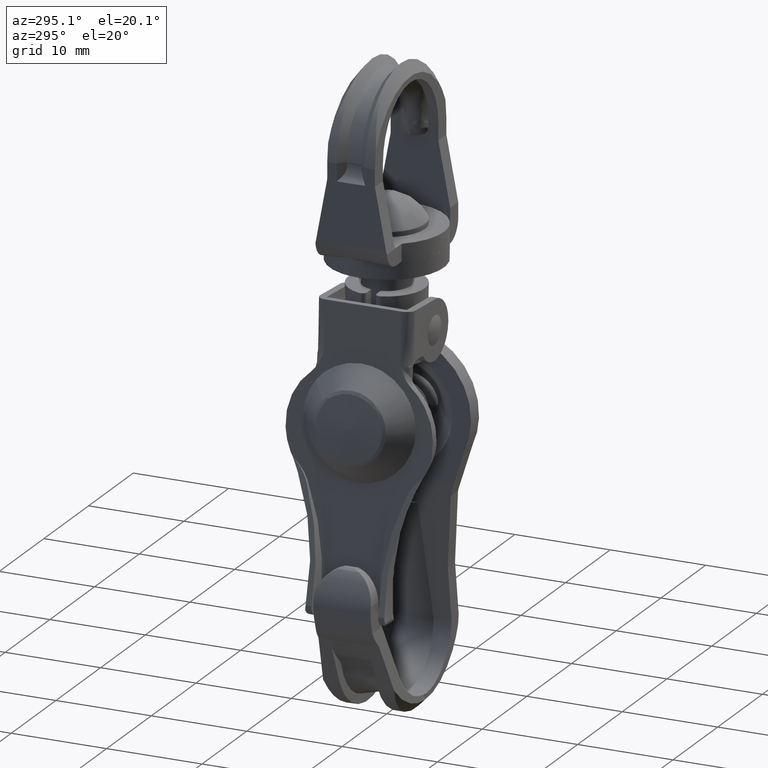
[diagram: clean part render]
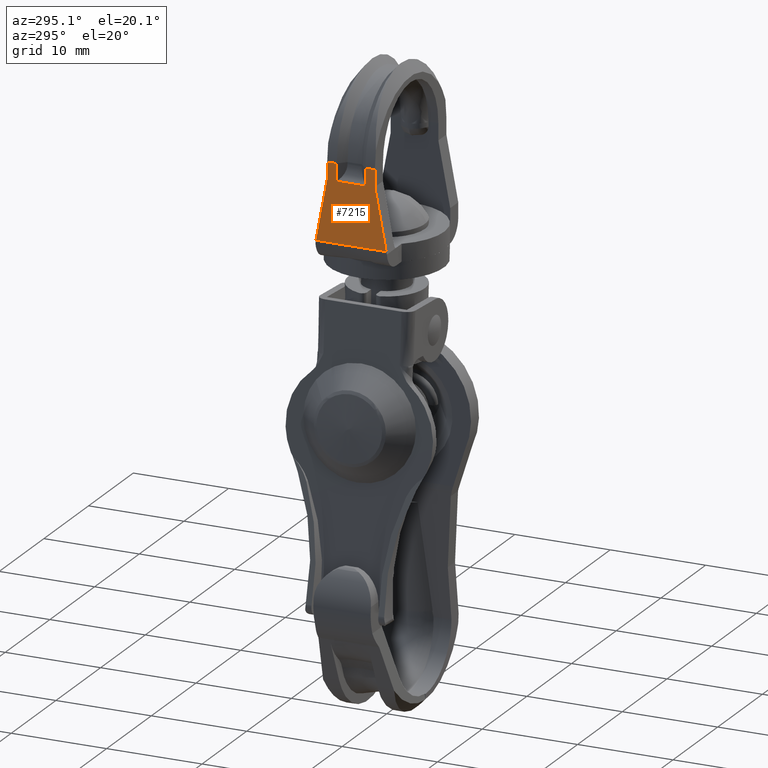
[diagram: same view with one face highlighted and labeled with its STEP entity id]
A machine part, auxiliary view. The second image highlights one B-rep face of the part: STEP entity #7215.
In plain terms, the highlighted face is a freeform B-spline surface patch.
Its self-contained STEP definition (entity closure, byte-faithful):
#5249=CARTESIAN_POINT('',(-8.0,-1.500000000000055,16.699999999999999));
#5250=VERTEX_POINT('',#5249);
#5271=CARTESIAN_POINT('',(-8.000005555555319,1.499990833417480,16.699999999999999));
#5272=VERTEX_POINT('',#5271);
#5286=CARTESIAN_POINT('',(-8.0,-1.500000000000055,16.699999999999999));
#5287=CARTESIAN_POINT('',(-8.000005555555319,1.499990833417480,16.699999999999999));
#5288=QUASI_UNIFORM_CURVE('',1,(#5286,#5287),.UNSPECIFIED.,.F.,.U.);
#5289=EDGE_CURVE('',#5250,#5272,#5288,.T.);
#5432=CARTESIAN_POINT('',(-8.000005000000000,1.499990312594872,18.500000000000000));
#5433=VERTEX_POINT('',#5432);
#5434=CARTESIAN_POINT('',(-8.000005555555319,1.499990833417480,16.699999999999999));
#5435=CARTESIAN_POINT('',(-8.000005000000000,1.499990312594872,18.500000000000000));
#5436=QUASI_UNIFORM_CURVE('',1,(#5434,#5435),.UNSPECIFIED.,.F.,.U.);
#5437=EDGE_CURVE('',#5272,#5433,#5436,.T.);
#5484=CARTESIAN_POINT('',(-8.0,-1.500000000000055,18.500000000000000));
#5485=VERTEX_POINT('',#5484);
#5486=CARTESIAN_POINT('',(-8.0,-1.500000000000055,16.699999999999999));
#5487=CARTESIAN_POINT('',(-8.0,-1.500000000000055,18.500000000000000));
#5488=QUASI_UNIFORM_CURVE('',1,(#5486,#5487),.UNSPECIFIED.,.F.,.U.);
#5489=EDGE_CURVE('',#5250,#5485,#5488,.T.);
#6587=CARTESIAN_POINT('',(-8.000010000002851,3.678760270047770,10.399997329866860));
#6588=VERTEX_POINT('',#6587);
#6596=CARTESIAN_POINT('',(-8.000001080041731,2.499998000000000,16.750331727997850));
#6597=VERTEX_POINT('',#6596);
#6598=CARTESIAN_POINT('',(-8.000001080041731,2.499998000000000,16.750331727997850));
#6599=CARTESIAN_POINT('',(-8.000005563532696,2.986786614588081,13.556121092052223));
#6600=CARTESIAN_POINT('',(-8.000010000002851,3.678760270047770,10.399997329866860));
#6608=(BOUNDED_CURVE()B_SPLINE_CURVE(2,(#6598,#6599,#6600),.UNSPECIFIED.,.F.,.U.)CURVE()GEOMETRIC_REPRESENTATION_ITEM()QUASI_UNIFORM_CURVE()RATIONAL_B_SPLINE_CURVE((1.0,0.999478411129115,1.0))REPRESENTATION_ITEM(''));
#6609=EDGE_CURVE('',#6597,#6588,#6608,.T.);
#6810=CARTESIAN_POINT('',(-8.000010000000000,-3.678760270047710,10.399997329867119));
#6811=VERTEX_POINT('',#6810);
#6847=CARTESIAN_POINT('',(-8.000001080041731,-2.499997999999965,16.750331727997949));
#6848=VERTEX_POINT('',#6847);
#6854=CARTESIAN_POINT('',(-8.000010000000000,-3.678760270047710,10.399997329867119));
#6855=CARTESIAN_POINT('',(-8.000005563531271,-2.986786614588013,13.556121092052411));
#6856=CARTESIAN_POINT('',(-8.000001080041731,-2.499997999999965,16.750331727997949));
#6864=(BOUNDED_CURVE()B_SPLINE_CURVE(2,(#6854,#6855,#6856),.UNSPECIFIED.,.F.,.U.)CURVE()GEOMETRIC_REPRESENTATION_ITEM()QUASI_UNIFORM_CURVE()RATIONAL_B_SPLINE_CURVE((1.0,0.999478411129340,1.0))REPRESENTATION_ITEM(''));
#6865=EDGE_CURVE('',#6811,#6848,#6864,.T.);
#7046=CARTESIAN_POINT('',(-8.000010000002851,3.678760270047770,10.399997329866860));
#7047=CARTESIAN_POINT('',(-8.000010000000000,-3.678760270047710,10.399997329867119));
#7048=QUASI_UNIFORM_CURVE('',1,(#7046,#7047),.UNSPECIFIED.,.F.,.U.);
#7049=EDGE_CURVE('',#6588,#6811,#7048,.T.);
#7178=CARTESIAN_POINT('',(-8.000010499499497,-4.046268475832315,9.995402592378234));
#7179=CARTESIAN_POINT('',(-7.999999500499774,-4.046268475832315,18.904595316845970));
#7180=CARTESIAN_POINT('',(-8.000010499499497,4.046268607395096,9.995402592378234));
#7181=CARTESIAN_POINT('',(-7.999999500499774,4.046268607395096,18.904595316845970));
#7182=B_SPLINE_SURFACE_WITH_KNOTS('',1,1,((#7178,#7180),(#7179,#7181)),.UNSPECIFIED.,.F.,.F.,.U.,(2,2),(2,2),(0.0,8.909192724474524),(0.0,8.092537083227411),.UNSPECIFIED.);
#7183=ORIENTED_EDGE('',*,*,#5437,.T.);
#7184=CARTESIAN_POINT('',(-8.0,2.499998000000000,18.500000000000000));
#7185=VERTEX_POINT('',#7184);
#7186=CARTESIAN_POINT('',(-8.0,2.499998000000000,18.500000000000000));
#7187=CARTESIAN_POINT('',(-8.000005000000000,1.499990312594872,18.500000000000000));
#7188=QUASI_UNIFORM_CURVE('',1,(#7186,#7187),.UNSPECIFIED.,.F.,.U.);
#7189=EDGE_CURVE('',#7185,#5433,#7188,.T.);
#7190=ORIENTED_EDGE('',*,*,#7189,.F.);
#7191=CARTESIAN_POINT('',(-8.0,2.499998000000000,18.500000000000000));
#7192=CARTESIAN_POINT('',(-8.000001080041731,2.499998000000000,16.750331727997850));
#7193=QUASI_UNIFORM_CURVE('',1,(#7191,#7192),.UNSPECIFIED.,.F.,.U.);
#7194=EDGE_CURVE('',#7185,#6597,#7193,.T.);
#7195=ORIENTED_EDGE('',*,*,#7194,.T.);
#7196=ORIENTED_EDGE('',*,*,#6609,.T.);
#7197=ORIENTED_EDGE('',*,*,#7049,.T.);
#7198=ORIENTED_EDGE('',*,*,#6865,.T.);
#7199=CARTESIAN_POINT('',(-8.0,-2.499998000000000,18.500000000000000));
#7200=VERTEX_POINT('',#7199);
#7201=CARTESIAN_POINT('',(-8.0,-2.499998000000000,18.500000000000000));
#7202=CARTESIAN_POINT('',(-8.000001080041731,-2.499997999999965,16.750331727997949));
#7203=QUASI_UNIFORM_CURVE('',1,(#7201,#7202),.UNSPECIFIED.,.F.,.U.);
#7204=EDGE_CURVE('',#7200,#6848,#7203,.T.);
#7205=ORIENTED_EDGE('',*,*,#7204,.F.);
#7206=CARTESIAN_POINT('',(-8.0,-1.500000000000055,18.500000000000000));
#7207=CARTESIAN_POINT('',(-8.0,-2.499998000000000,18.500000000000000));
#7208=QUASI_UNIFORM_CURVE('',1,(#7206,#7207),.UNSPECIFIED.,.F.,.U.);
#7209=EDGE_CURVE('',#5485,#7200,#7208,.T.);
#7210=ORIENTED_EDGE('',*,*,#7209,.F.);
#7211=ORIENTED_EDGE('',*,*,#5489,.F.);
#7212=ORIENTED_EDGE('',*,*,#5289,.T.);
#7213=EDGE_LOOP('',(#7183,#7190,#7195,#7196,#7197,#7198,#7205,#7210,#7211,#7212));
#7214=FACE_OUTER_BOUND('',#7213,.T.);
#7215=ADVANCED_FACE('',(#7214),#7182,.T.);